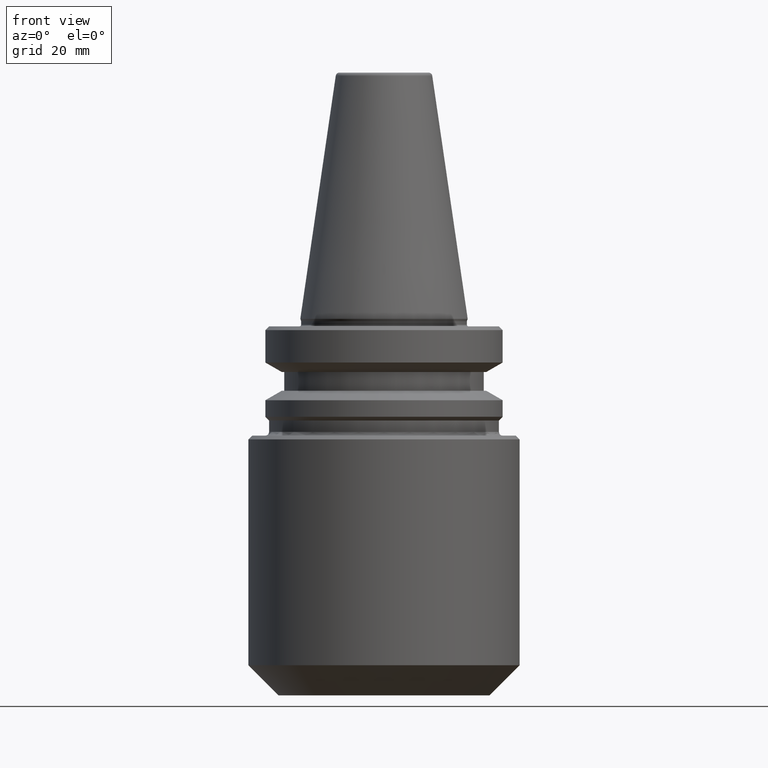
[diagram: clean part render]
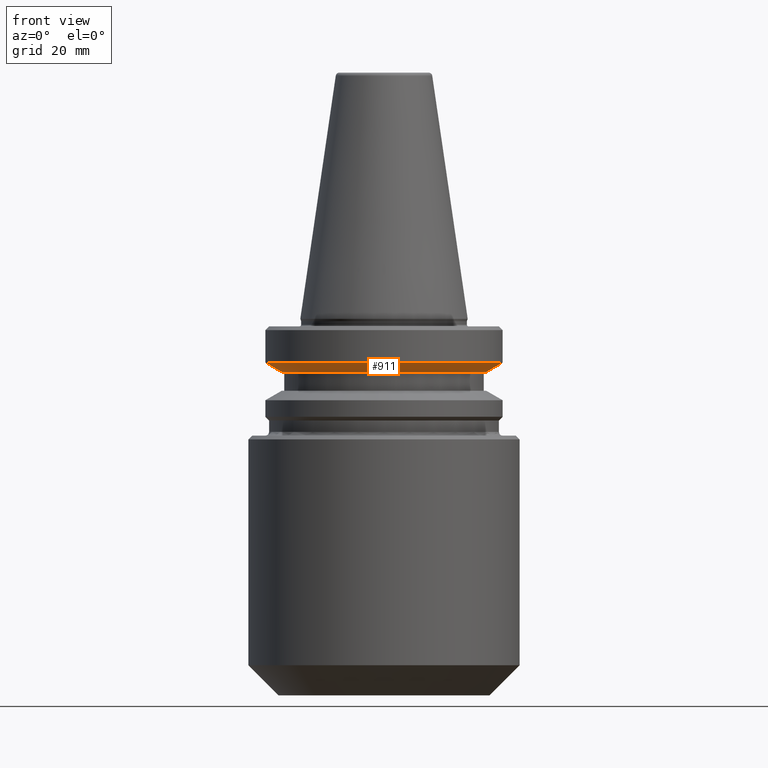
[diagram: same view with one face highlighted and labeled with its STEP entity id]
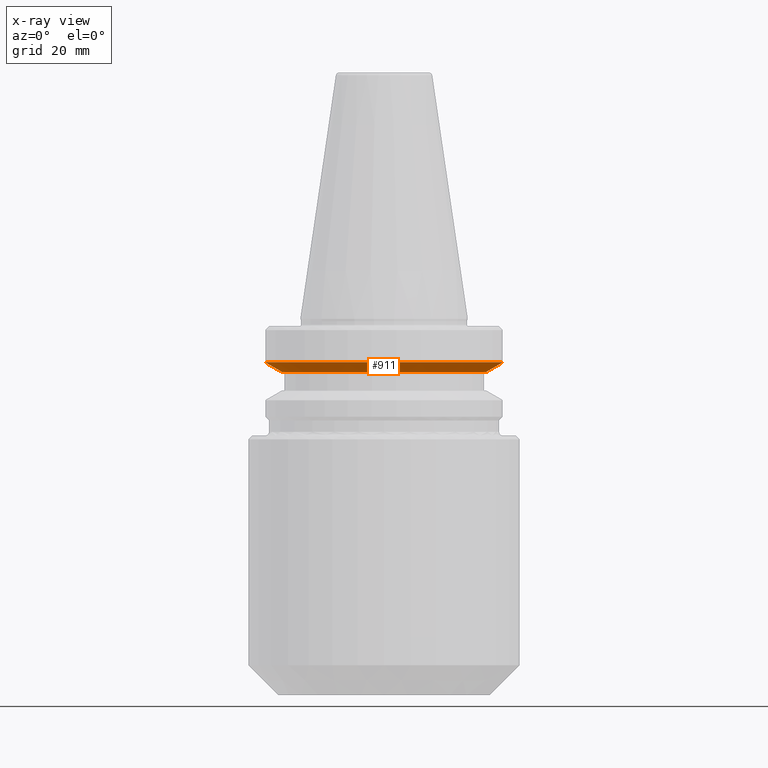
[diagram: x-ray of the same camera — body ghosted, the highlighted face saturated]
A machine part, front view. The second image highlights one B-rep face of the part: STEP entity #911.
The next image is the same camera in x-ray: the body ghosted, the highlighted face saturated — about 0% of this face is hidden behind the body in this view.
In plain terms, the highlighted conical surface has half-angle 60 deg.
Its self-contained STEP definition (entity closure, byte-faithful):
#18 = VECTOR ( 'NONE', #483, 1000.000000000000000 ) ;
#40 = VERTEX_POINT ( 'NONE', #648 ) ;
#41 = DIRECTION ( 'NONE',  ( 1.000000000000000000, 0.0000000000000000000, 0.0000000000000000000 ) ) ;
#70 = CONICAL_SURFACE ( 'NONE', #684, 27.16962701892322600, 1.047197551196598700 ) ;
#75 = VERTEX_POINT ( 'NONE', #903 ) ;
#185 = VECTOR ( 'NONE', #433, 1000.000000000000000 ) ;
#253 = CIRCLE ( 'NONE', #607, 27.16962701892322600 ) ;
#317 = EDGE_CURVE ( 'NONE', #943, #40, #713, .T. ) ;
#327 = EDGE_CURVE ( 'NONE', #441, #943, #253, .T. ) ;
#328 = CARTESIAN_POINT ( 'NONE',  ( 0.0000000000000000000, 0.0000000000000000000, -14.09999999999965500 ) ) ;
#335 = DIRECTION ( 'NONE',  ( -0.0000000000000000000, -0.0000000000000000000, 1.000000000000000000 ) ) ;
#336 = CIRCLE ( 'NONE', #932, 31.50000000000019500 ) ;
#341 = EDGE_LOOP ( 'NONE', ( #442, #513, #779, #661 ) ) ;
#406 = DIRECTION ( 'NONE',  ( 1.000000000000000000, 0.0000000000000000000, 0.0000000000000000000 ) ) ;
#433 = DIRECTION ( 'NONE',  ( -0.8660254037844391500, 1.060575238724907500E-016, 0.4999999999999991100 ) ) ;
#440 = LINE ( 'NONE', #963, #185 ) ;
#441 = VERTEX_POINT ( 'NONE', #728 ) ;
#442 = ORIENTED_EDGE ( 'NONE', *, *, #642, .F. ) ;
#483 = DIRECTION ( 'NONE',  ( 0.8660254037844391500, 0.0000000000000000000, 0.4999999999999991100 ) ) ;
#513 = ORIENTED_EDGE ( 'NONE', *, *, #327, .T. ) ;
#543 = EDGE_CURVE ( 'NONE', #75, #40, #336, .T. ) ;
#562 = FACE_OUTER_BOUND ( 'NONE', #341, .T. ) ;
#607 = AXIS2_PLACEMENT_3D ( 'NONE', #328, #934, #406 ) ;
#642 = EDGE_CURVE ( 'NONE', #441, #75, #440, .T. ) ;
#648 = CARTESIAN_POINT ( 'NONE',  ( 31.50000000000019500, 0.0000000000000000000, -11.59985799368339000 ) ) ;
#661 = ORIENTED_EDGE ( 'NONE', *, *, #543, .F. ) ;
#684 = AXIS2_PLACEMENT_3D ( 'NONE', #925, #834, #41 ) ;
#713 = LINE ( 'NONE', #1114, #18 ) ;
#728 = CARTESIAN_POINT ( 'NONE',  ( -27.16962701892322600, 3.592478546794681300E-015, -14.09999999999965500 ) ) ;
#779 = ORIENTED_EDGE ( 'NONE', *, *, #317, .T. ) ;
#834 = DIRECTION ( 'NONE',  ( -0.0000000000000000000, -0.0000000000000000000, 1.000000000000000000 ) ) ;
#855 = CARTESIAN_POINT ( 'NONE',  ( 0.0000000000000000000, 0.0000000000000000000, -11.59985799368339000 ) ) ;
#903 = CARTESIAN_POINT ( 'NONE',  ( -31.50000000000019500, 3.857637417314186400E-015, -11.59985799368339000 ) ) ;
#911 = ADVANCED_FACE ( 'NONE', ( #562 ), #70, .T. ) ;
#925 = CARTESIAN_POINT ( 'NONE',  ( 0.0000000000000000000, 0.0000000000000000000, -14.09999999999965500 ) ) ;
#932 = AXIS2_PLACEMENT_3D ( 'NONE', #855, #335, #940 ) ;
#934 = DIRECTION ( 'NONE',  ( -0.0000000000000000000, -0.0000000000000000000, 1.000000000000000000 ) ) ;
#940 = DIRECTION ( 'NONE',  ( 1.000000000000000000, 0.0000000000000000000, 0.0000000000000000000 ) ) ;
#943 = VERTEX_POINT ( 'NONE', #1107 ) ;
#963 = CARTESIAN_POINT ( 'NONE',  ( -27.16962701892322600, 3.327319676275177300E-015, -14.09999999999965500 ) ) ;
#1107 = CARTESIAN_POINT ( 'NONE',  ( 27.16962701892322600, 0.0000000000000000000, -14.09999999999965500 ) ) ;
#1114 = CARTESIAN_POINT ( 'NONE',  ( 27.16962701892322600, 0.0000000000000000000, -14.09999999999965500 ) ) ;